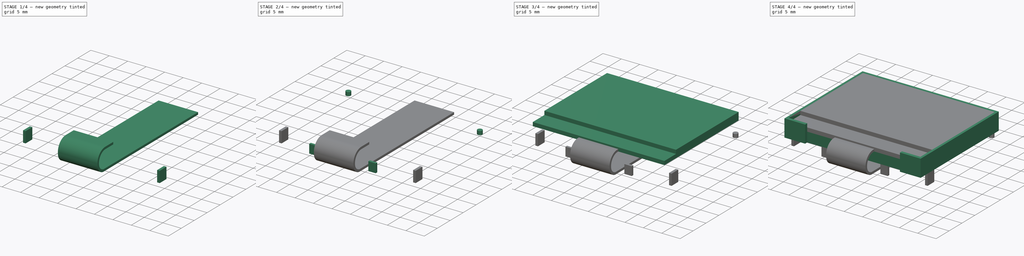
[diagram: build sequence overview — one tinted view per stage of 4, left to right]
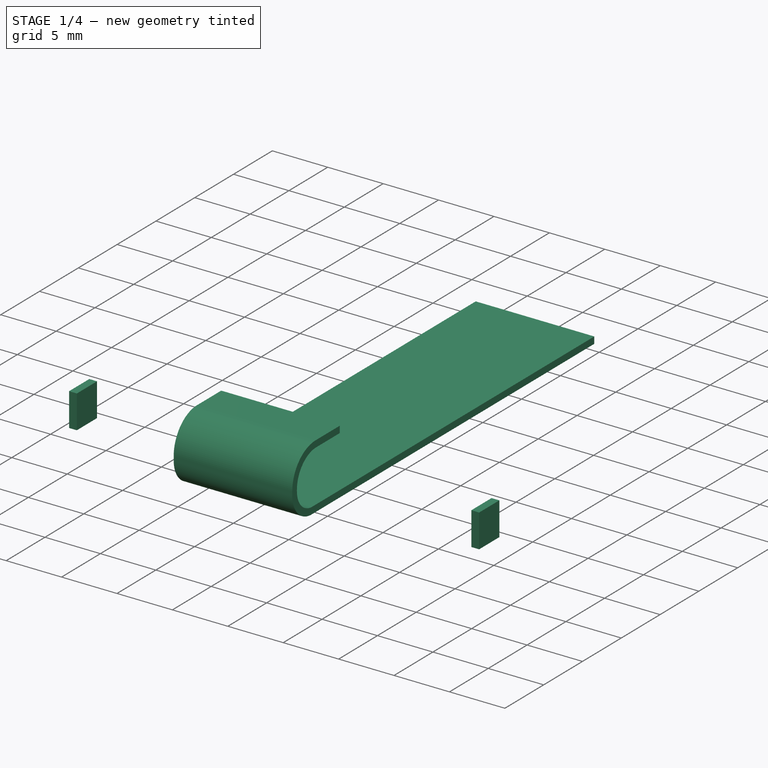
[diagram: stage 1 of 4 — iso view after this stage's code; geometry added in this stage tinted green]
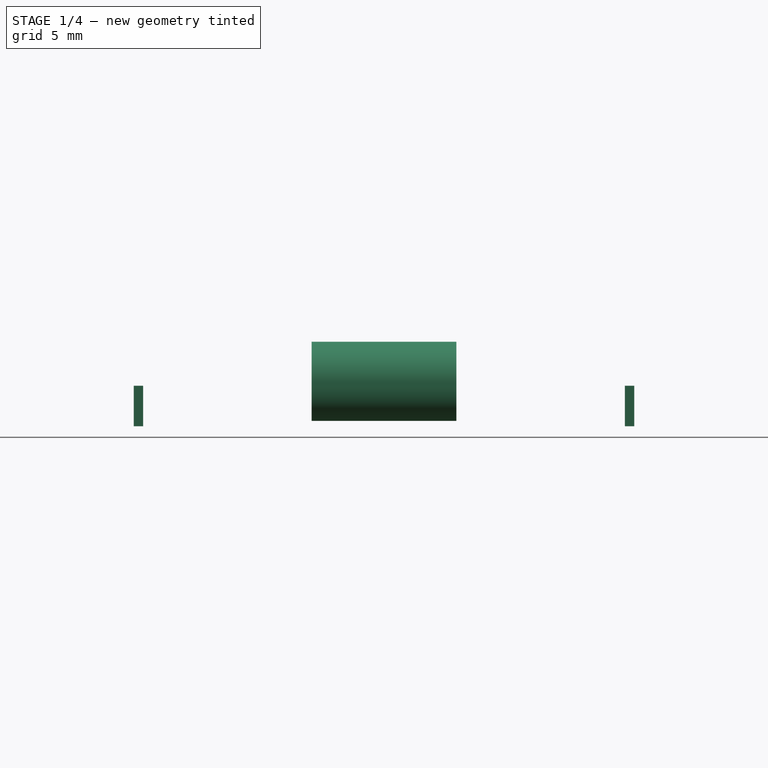
[diagram: stage 1 of 4 — front view after this stage's code; geometry added in this stage tinted green]
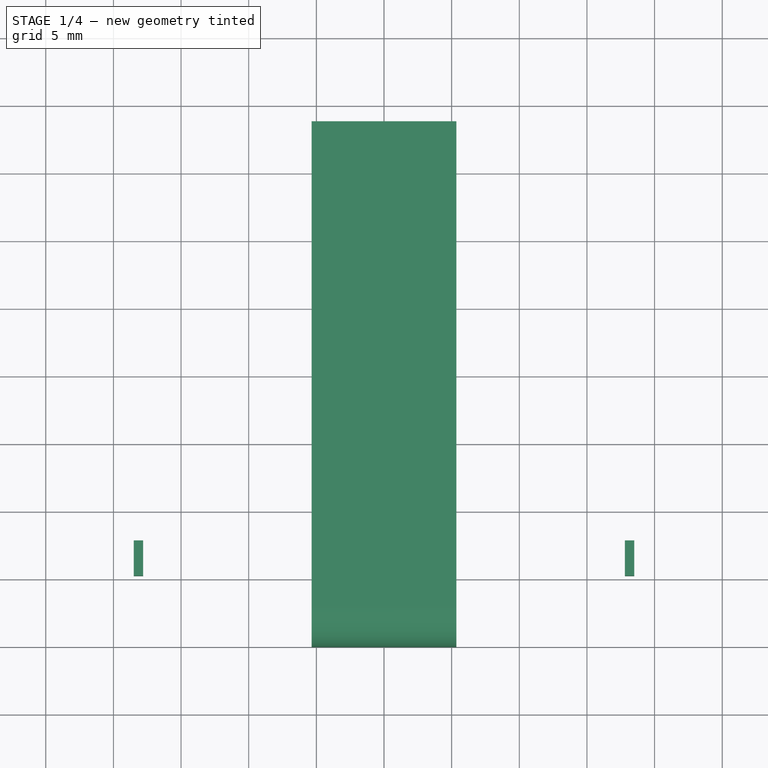
[diagram: stage 1 of 4 — top view after this stage's code; geometry added in this stage tinted green]
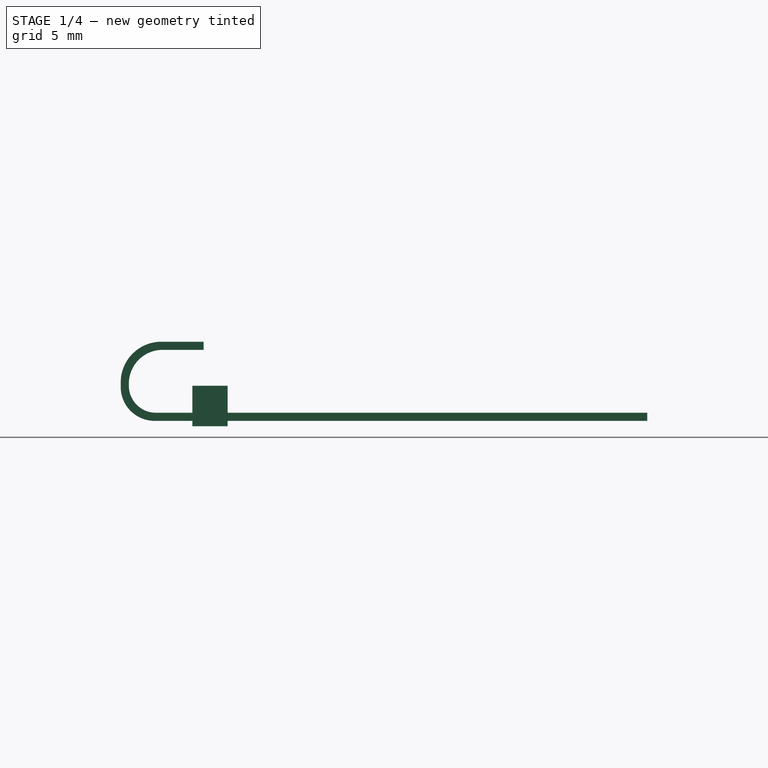
[diagram: stage 1 of 4 — right view after this stage's code; geometry added in this stage tinted green]
FCSTD DOCUMENT  (FreeCAD 0.16R6712 (Git))
Label: DEM_128064P_SBH-PW-N
License: All rights reserved
LicenseURL: http://en.wikipedia.org/wiki/All_rights_reserved
objects: Sketcher::SketchObject×9, PartDesign::Pad×9, App::MeasureDistance×6
note: 27 computed .brp shape members not serialized (recipe doc carries the construction recipe); baked Part::Feature solids carry a one-line shape summary decoded from their .brp

FEATURE [Sketcher::SketchObject] Sketch007  label="piny_montazowe002"
  Placement = pos=(0,0,0) rot=(1,0,0;3.14159rad)
  sketch-geometry (13):
    g0: LineSegment [constr] StartX=-18.5 StartY=17.45 StartZ=0 EndX=18.5 EndY=17.45 EndZ=0
    g1: LineSegment [constr] StartX=18.5 StartY=17.45 StartZ=0 EndX=18.5 EndY=-12.85 EndZ=0
    g2: LineSegment [constr] StartX=18.5 StartY=-12.85 StartZ=0 EndX=-18.5 EndY=-12.85 EndZ=0
    g3: LineSegment [constr] StartX=-18.5 StartY=-12.85 StartZ=0 EndX=-18.5 EndY=17.45 EndZ=0
    g4: LineSegment StartX=18.5 StartY=14.75 StartZ=0 EndX=17.8 EndY=14.75 EndZ=0
    g5: LineSegment StartX=17.8 StartY=14.75 StartZ=0 EndX=17.8 EndY=12.15 EndZ=0
    g6: LineSegment StartX=17.8 StartY=12.15 StartZ=0 EndX=18.5 EndY=12.15 EndZ=0
    g7: LineSegment StartX=18.5 StartY=12.15 StartZ=0 EndX=18.5 EndY=14.75 EndZ=0
    g8: LineSegment StartX=-17.8 StartY=14.75 StartZ=0 EndX=-18.5 EndY=14.75 EndZ=0
    g9: LineSegment StartX=-18.5 StartY=14.75 StartZ=0 EndX=-18.5 EndY=12.15 EndZ=0
    g10: LineSegment StartX=-18.5 StartY=12.15 StartZ=0 EndX=-17.8 EndY=12.15 EndZ=0
    g11: LineSegment StartX=-17.8 StartY=12.15 StartZ=0 EndX=-17.8 EndY=14.75 EndZ=0
    g12: LineSegment [constr] StartX=-19.7931 StartY=13.45 StartZ=0 EndX=20.9865 EndY=13.45 EndZ=0
  constraints (37):
    c: Coincident(g0,g1)
    c: Coincident(g1,g2)
    c: Coincident(g2,g3)
    c: Coincident(g3,g0)
    c: Horizontal(g0)
    c: Horizontal(g2)
    c: Vertical(g1)
    c: Vertical(g3)
    c: Symmetric(g1,g2,g-2)
    c: DistanceX(g0,g0) = 37
    c: DistanceY(g3,g3) = 30.3
    c: Coincident(g4,g5)
    c: Coincident(g5,g6)
    c: Coincident(g6,g7)
    c: Coincident(g7,g4)
    c: Horizontal(g4)
    c: Horizontal(g6)
    c: Vertical(g5)
    c: Vertical(g7)
    c: DistanceY(g5,g5) = 2.6
    c: Coincident(g8,g9)
    c: Coincident(g9,g10)
    c: Coincident(g10,g11)
    c: Coincident(g11,g8)
    c: Horizontal(g8)
    c: Horizontal(g10)
    c: Vertical(g9)
    c: Vertical(g11)
    c: Equal(g11,g5)
    c: Equal(g6,g10)
    c: Symmetric(g8,g4,g-2)
    c: PointOnObject(g6,g1)
    c: DistanceX(g6,g6) = 0.7
    c: DistanceY(g2,g-1) = 12.85
    c: Horizontal(g12)
    c: Symmetric(g6,g4,g12)
    c: DistanceY(g12,g0) = 4
FEATURE [PartDesign::Pad] Pad007  label="piny_montazowe003"
  Length = 3
  Length2 = 100
  Placement = pos=(0,0,0) rot=(1,0,0;3.14159rad)
  Sketch = -> Sketch007
  Type = 0
FEATURE [Sketcher::SketchObject] Sketch008  label="pasek"
  Placement = pos=(0,0,0) rot=(0.57735,0.57735,0.57735;2.0944rad)
  sketch-geometry (14):
    g0: LineSegment StartX=-13.9267 StartY=2.65 StartZ=0 EndX=-16.95 EndY=2.65 EndZ=0
    g1: LineSegment StartX=-19.45 StartY=0.15 StartZ=0 EndX=-19.45 EndY=0 EndZ=0
    g2: LineSegment StartX=-20.05 StartY=-0.1 StartZ=0 EndX=-20.05 EndY=0.25 EndZ=0
    g3: LineSegment StartX=-17.05 StartY=3.25 StartZ=0 EndX=-13.9267 EndY=3.25 EndZ=0
    g4: LineSegment StartX=-13.9267 StartY=3.25 StartZ=0 EndX=-13.9267 EndY=2.65 EndZ=0
    g5: GeomPoint [constr] X=-19.45 Y=0 Z=0
    g6: GeomPoint [constr] X=-20.05 Y=0 Z=0
    g7: ArcOfCircle CenterX=-16.95 CenterY=0.15 CenterZ=0 NormalX=0 NormalY=0 NormalZ=1 Radius=2.5 StartAngle=1.5708 EndAngle=3.14159
    g8: ArcOfCircle CenterX=-17.05 CenterY=0.25 CenterZ=0 NormalX=0 NormalY=0 NormalZ=1 Radius=3 StartAngle=1.5708 EndAngle=3.14159
    g9: ArcOfCircle CenterX=-17.45 CenterY=0 CenterZ=0 NormalX=0 NormalY=0 NormalZ=1 Radius=2 StartAngle=3.14159 EndAngle=4.71239
    g10: ArcOfCircle CenterX=-17.55 CenterY=-0.1 CenterZ=0 NormalX=0 NormalY=0 NormalZ=1 Radius=2.5 StartAngle=3.14159 EndAngle=4.71239
    g11: LineSegment StartX=18.87 StartY=-2 StartZ=0 EndX=18.87 EndY=-2.6 EndZ=0
    g12: LineSegment StartX=18.87 StartY=-2.6 StartZ=0 EndX=-17.55 EndY=-2.6 EndZ=0
    g13: LineSegment StartX=-17.45 StartY=-2 StartZ=0 EndX=18.87 EndY=-2 EndZ=0
  constraints (36):
    c: Horizontal(g0)
    c: Vertical(g1)
    c: Vertical(g2)
    c: Horizontal(g3)
    c: Coincident(g3,g4)
    c: Coincident(g4,g0)
    c: Vertical(g4)
    c: DistanceY(g4,g4) = 0.6
    c: DistanceY(g-1,g0) = 2.65
    c: PointOnObject(g5,g1)
    c: PointOnObject(g5,g-1)
    c: DistanceX(g5,g-1) = 19.45
    c: PointOnObject(g6,g2)
    c: PointOnObject(g6,g-1)
    c: DistanceX(g6,g5) = 0.6
    c: Tangent(g1,g7) = -1.5708
    c: Tangent(g0,g7) = -1.5708
    c: Tangent(g2,g8) = 1.5708
    c: Tangent(g3,g8) = 1.5708
    c: Tangent(g1,g9) = -1.5708
    c: Tangent(g2,g10) = 1.5708
    c: Radius(g7) = 2.5
    c: Radius(g8) = 3
    c: Vertical(g11)
    c: Coincident(g11,g12)
    c: Equal(g11,g4)
    c: DistanceY(g9,g5) = 2
    c: Radius(g9) = 2
    c: Tangent(g9,g13) = -1.5708
    c: Horizontal(g13)
    c: Coincident(g11,g13)
    c: Radius(g10) = 2.5
    c: DistanceY(g10,g9) = 0.6
    c: Coincident(g12,g10)
    c: DistanceX(g12,g12) = 36.42
    c: DistanceX(g10,g9) = 0.1
FEATURE [PartDesign::Pad] Pad008  label="pasek001"
  Length = 10.7
  Length2 = 100
  Midplane = true
  Placement = pos=(0,0,0) rot=(0.57735,0.57735,0.57735;2.0944rad)
  Sketch = -> Sketch008
  Type = 0
FEATURE [App::MeasureDistance] Distance001  label="Distance: 1,87718 mm"
  Distance = 1.87718
  P1 = (5.35,-17.7811,2.84017)
  P2 = (5.35,-19.3144,1.75715)
FEATURE [App::MeasureDistance] Distance002  label="Distance: 1,69827 mm"
  Distance = 1.69827
  P1 = (5.35,-19.3265,1.75715)
  P2 = (5.35,-19.8011,0.126541)
FEATURE [App::MeasureDistance] Distance003  label="Distance: 1,86305 mm"
  Distance = 1.86305
  P1 = (5.35,-19.8011,0.163048)
  P2 = (5.35,-19.1683,-1.58925)
FEATURE [App::MeasureDistance] Distance004  label="Distance: 1,83603 mm"
  Distance = 1.83603
  P1 = (5.35,-19.1805,-1.58925)
  P2 = (5.35,-17.5012,-2.33154)
FEATURE [App::MeasureDistance] Distance  label="Distance: 0,309124 mm"
  Distance = 0.309124
  P1 = (5.35,-17.4786,2.89009)
  P2 = (5.35,-17.78,2.82182)
FEATURE [App::MeasureDistance] Distance005  label="Distance: 36,3422 mm"
  Distance = 36.3422
  P1 = (5.35,-17.4722,-2.36018)
  P2 = (5.35,18.87,-2.39459)
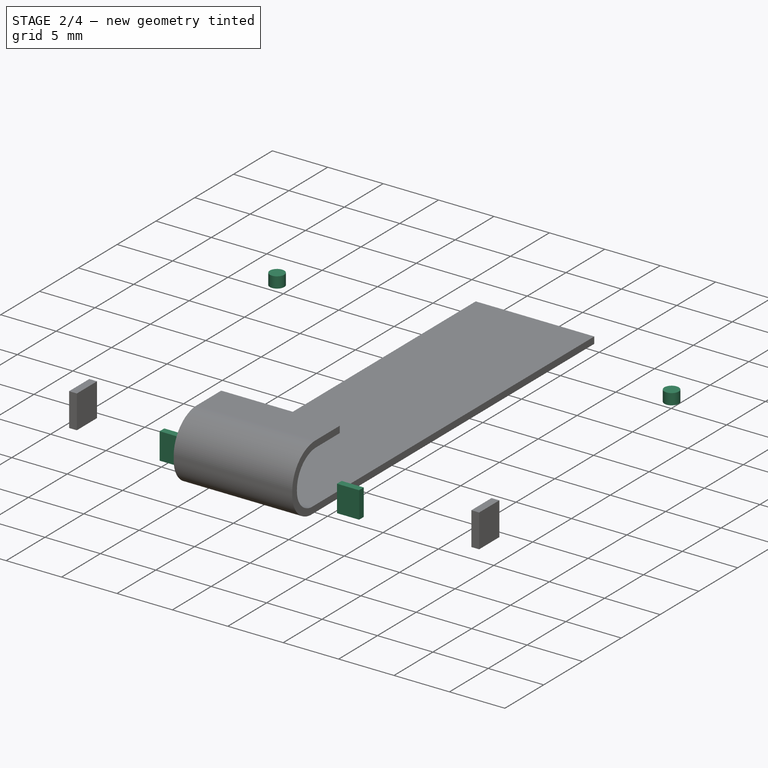
[diagram: stage 2 of 4 — iso view after this stage's code; geometry added in this stage tinted green]
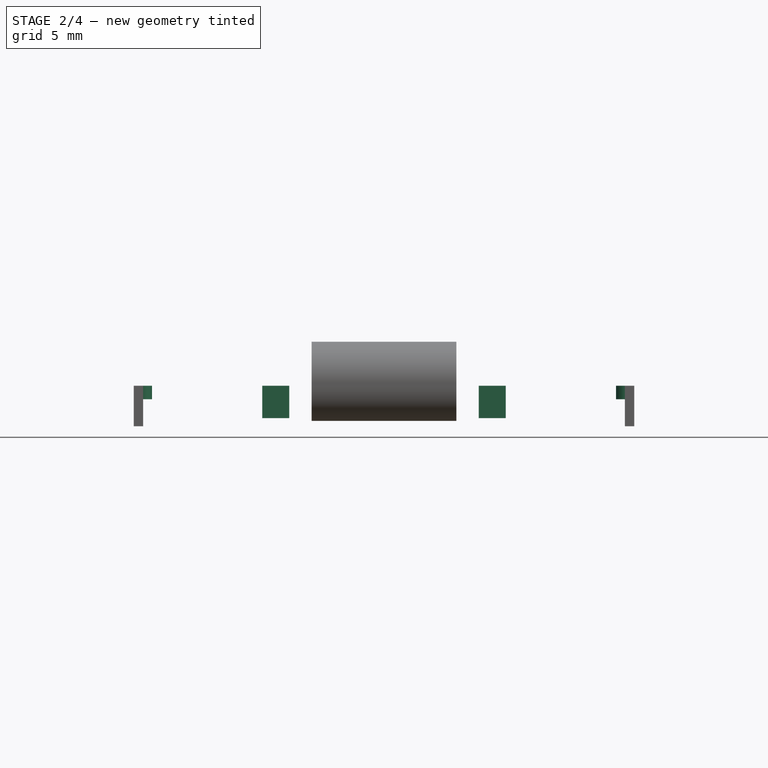
[diagram: stage 2 of 4 — front view after this stage's code; geometry added in this stage tinted green]
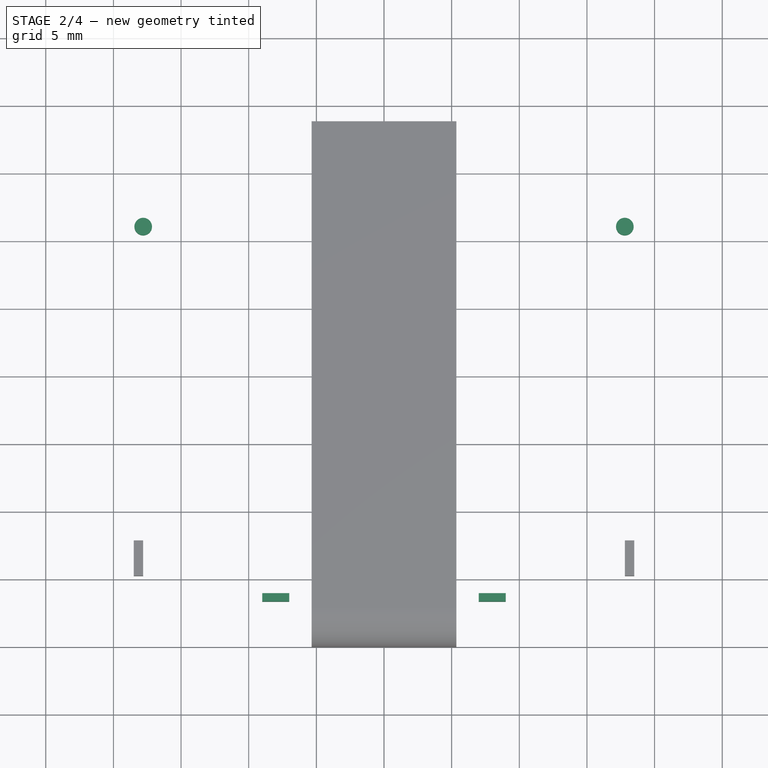
[diagram: stage 2 of 4 — top view after this stage's code; geometry added in this stage tinted green]
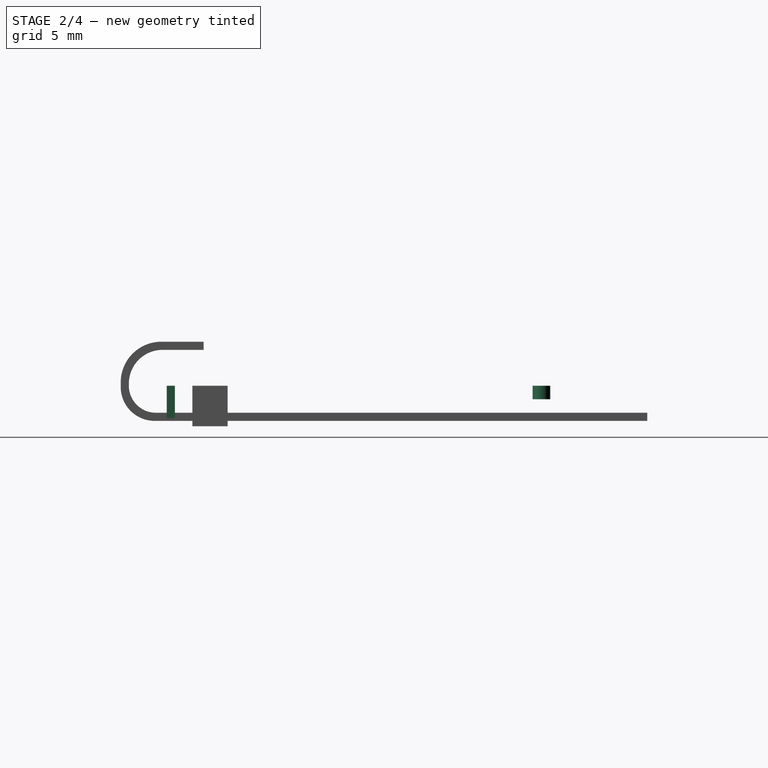
[diagram: stage 2 of 4 — right view after this stage's code; geometry added in this stage tinted green]
FEATURE [Sketcher::SketchObject] Sketch005  label="piny_montazowe"
  Placement = pos=(0,0,0) rot=(1,0,0;3.14159rad)
  sketch-geometry (6):
    g0: Circle CenterX=-17.8 CenterY=-11.05 CenterZ=0 NormalX=0 NormalY=0 NormalZ=1 Radius=0.65
    g1: Circle CenterX=17.8 CenterY=-11.05 CenterZ=0 NormalX=0 NormalY=0 NormalZ=1 Radius=0.65
    g2: LineSegment [constr] StartX=-18.5 StartY=17.45 StartZ=0 EndX=18.5 EndY=17.45 EndZ=0
    g3: LineSegment [constr] StartX=18.5 StartY=17.45 StartZ=0 EndX=18.5 EndY=-12.85 EndZ=0
    g4: LineSegment [constr] StartX=18.5 StartY=-12.85 StartZ=0 EndX=-18.5 EndY=-12.85 EndZ=0
    g5: LineSegment [constr] StartX=-18.5 StartY=-12.85 StartZ=0 EndX=-18.5 EndY=17.45 EndZ=0
  constraints (17):
    c: Equal(g1,g0)
    c: Radius(g0) = 0.65
    c: Symmetric(g1,g0,g-2)
    c: DistanceX(g0,g1) = 35.6
    c: Coincident(g2,g3)
    c: Coincident(g3,g4)
    c: Coincident(g4,g5)
    c: Coincident(g5,g2)
    c: Horizontal(g2)
    c: Horizontal(g4)
    c: Vertical(g3)
    c: Vertical(g5)
    c: Symmetric(g3,g4,g-2)
    c: DistanceX(g2,g2) = 37
    c: DistanceY(g5,g5) = 30.3
    c: DistanceY(g0,g2) = 28.5
    c: DistanceY(g3,g-1) = 12.85
FEATURE [PartDesign::Pad] Pad005  label="piny_montazowe001"
  Length = 1
  Length2 = 100
  Placement = pos=(0,0,0) rot=(1,0,0;3.14159rad)
  Sketch = -> Sketch005
  Type = 0
FEATURE [Sketcher::SketchObject] Sketch006  label="katoda_anoda"
  Placement = pos=(0,0,0) rot=(1,0,0;3.14159rad)
  sketch-geometry (13):
    g0: LineSegment StartX=-9 StartY=16.65 StartZ=0 EndX=-7 EndY=16.65 EndZ=0
    g1: LineSegment StartX=-7 StartY=16.65 StartZ=0 EndX=-7 EndY=16.05 EndZ=0
    g2: LineSegment StartX=-7 StartY=16.05 StartZ=0 EndX=-9 EndY=16.05 EndZ=0
    g3: LineSegment StartX=-9 StartY=16.05 StartZ=0 EndX=-9 EndY=16.65 EndZ=0
    g4: LineSegment StartX=7 StartY=16.65 StartZ=0 EndX=9 EndY=16.65 EndZ=0
    g5: LineSegment StartX=9 StartY=16.65 StartZ=0 EndX=9 EndY=16.05 EndZ=0
    g6: LineSegment StartX=9 StartY=16.05 StartZ=0 EndX=7 EndY=16.05 EndZ=0
    g7: LineSegment StartX=7 StartY=16.05 StartZ=0 EndX=7 EndY=16.65 EndZ=0
    g8: LineSegment [constr] StartX=-18.5 StartY=17.45 StartZ=0 EndX=18.5 EndY=17.45 EndZ=0
    g9: LineSegment [constr] StartX=18.5 StartY=17.45 StartZ=0 EndX=18.5 EndY=-12.85 EndZ=0
    g10: LineSegment [constr] StartX=18.5 StartY=-12.85 StartZ=0 EndX=-18.5 EndY=-12.85 EndZ=0
    g11: LineSegment [constr] StartX=-18.5 StartY=-12.85 StartZ=0 EndX=-18.5 EndY=17.45 EndZ=0
    g12: LineSegment [constr] StartX=-9.90383 StartY=16.35 StartZ=0 EndX=10.7665 EndY=16.35 EndZ=0
  constraints (37):
    c: Coincident(g0,g1)
    c: Coincident(g1,g2)
    c: Coincident(g2,g3)
    c: Coincident(g3,g0)
    c: Horizontal(g0)
    c: Horizontal(g2)
    c: Vertical(g1)
    c: Vertical(g3)
    c: Coincident(g4,g5)
    c: Coincident(g5,g6)
    c: Coincident(g6,g7)
    c: Coincident(g7,g4)
    c: Horizontal(g4)
    c: Horizontal(g6)
    c: Vertical(g5)
    c: Vertical(g7)
    c: DistanceX(g2,g2) = 2
    c: DistanceY(g1,g1) = 0.6
    c: Equal(g7,g1)
    c: Equal(g6,g2)
    c: Symmetric(g6,g1,g-2)
    c: DistanceX(g0,g4) = 14
    c: Coincident(g8,g9)
    c: Coincident(g9,g10)
    c: Coincident(g10,g11)
    c: Coincident(g11,g8)
    c: Horizontal(g8)
    c: Horizontal(g10)
    c: Vertical(g9)
    c: Vertical(g11)
    c: Symmetric(g10,g9,g-2)
    c: DistanceX(g10,g10) = 37
    c: DistanceY(g11,g11) = 30.3
    c: DistanceY(g10,g-1) = 12.85
    c: Horizontal(g12)
    c: Symmetric(g5,g4,g12)
    c: DistanceY(g12,g8) = 1.1
FEATURE [PartDesign::Pad] Pad006  label="katoda_anoda001"
  Length = 2.4
  Length2 = 100
  Placement = pos=(0,0,0) rot=(1,0,0;3.14159rad)
  Sketch = -> Sketch006
  Type = 0
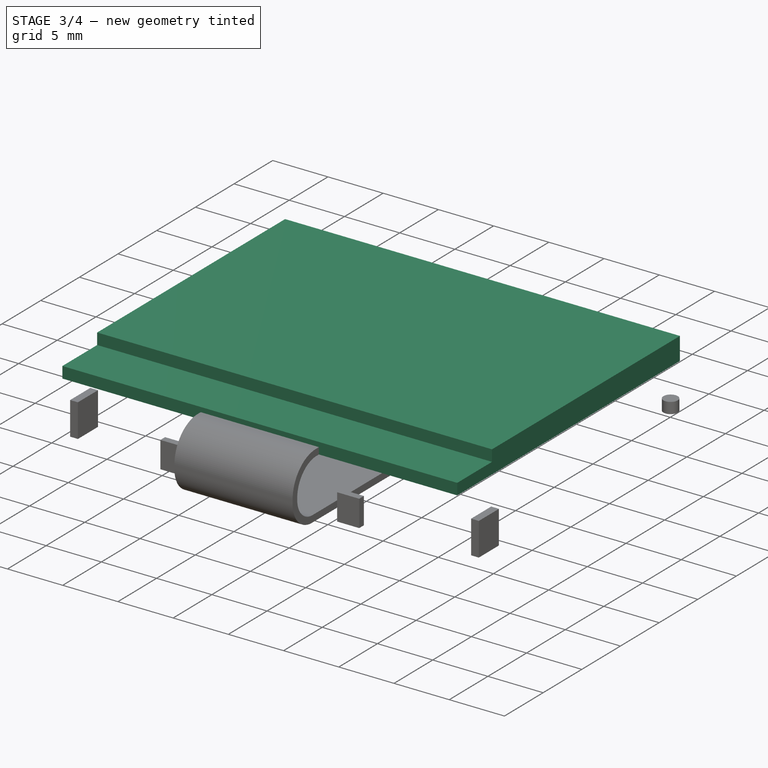
[diagram: stage 3 of 4 — iso view after this stage's code; geometry added in this stage tinted green]
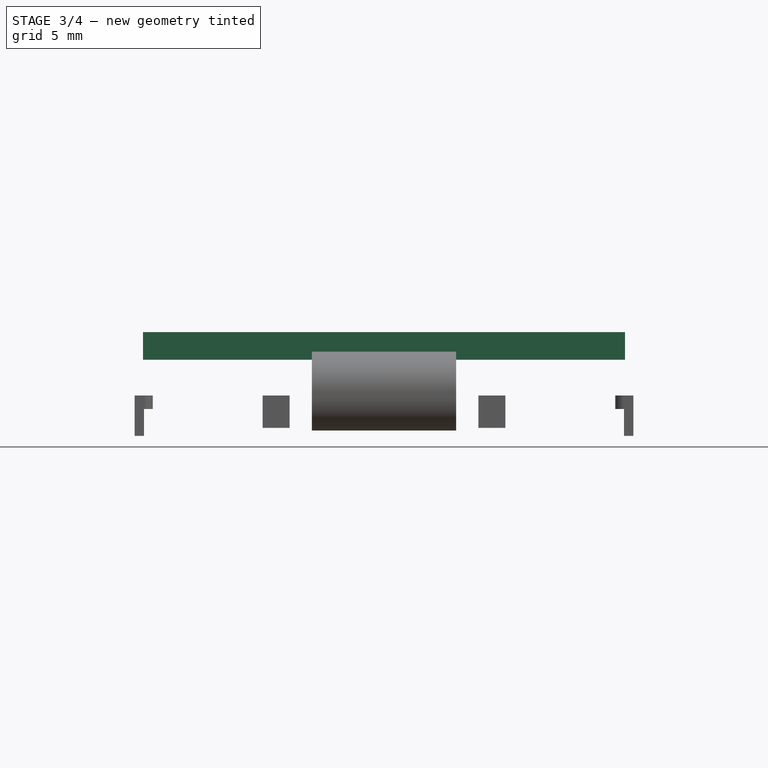
[diagram: stage 3 of 4 — front view after this stage's code; geometry added in this stage tinted green]
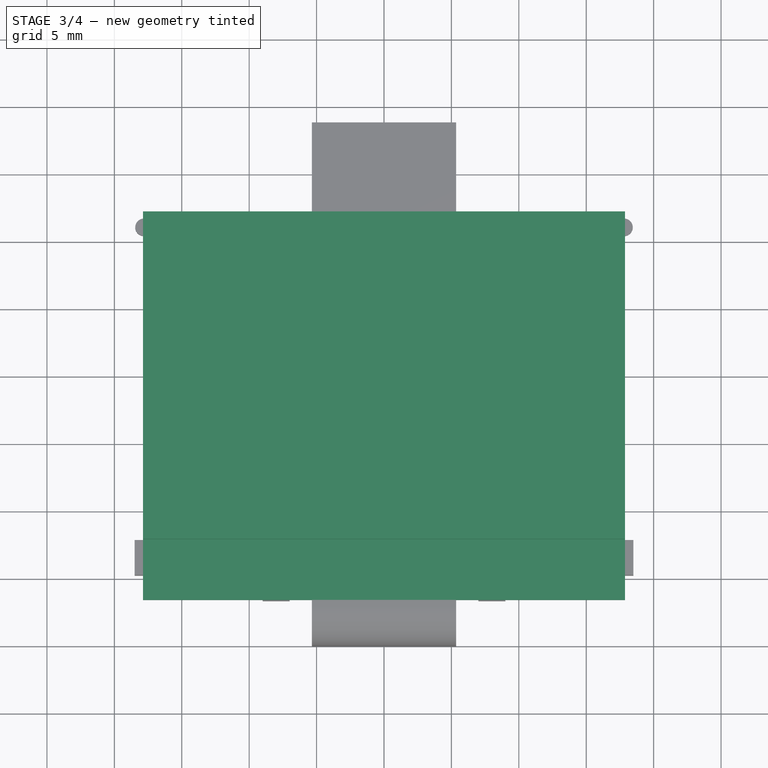
[diagram: stage 3 of 4 — top view after this stage's code; geometry added in this stage tinted green]
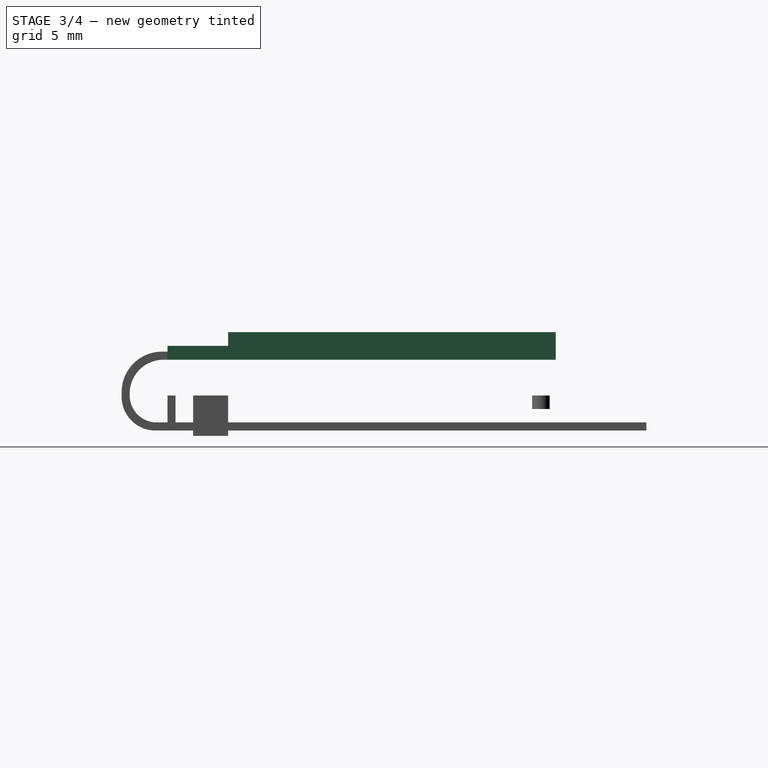
[diagram: stage 3 of 4 — right view after this stage's code; geometry added in this stage tinted green]
FEATURE [Sketcher::SketchObject] Sketch002  label="ekran"
  Placement = pos=(0,0,2.65) rot=(0,0,1;0rad)
  sketch-geometry (4):
    g0: LineSegment StartX=-13.75 StartY=7.99 StartZ=0 EndX=13.75 EndY=7.99 EndZ=0
    g1: LineSegment StartX=13.75 StartY=7.99 StartZ=0 EndX=13.75 EndY=-7.99 EndZ=0
    g2: LineSegment StartX=13.75 StartY=-7.99 StartZ=0 EndX=-13.75 EndY=-7.99 EndZ=0
    g3: LineSegment StartX=-13.75 StartY=-7.99 StartZ=0 EndX=-13.75 EndY=7.99 EndZ=0
  constraints (12):
    c: Coincident(g0,g1)
    c: Coincident(g1,g2)
    c: Coincident(g2,g3)
    c: Coincident(g3,g0)
    c: Horizontal(g0)
    c: Horizontal(g2)
    c: Vertical(g1)
    c: Vertical(g3)
    c: Symmetric(g1,g0,g-1)
    c: Symmetric(g2,g1,g-2)
    c: DistanceY(g3,g3) = 15.98
    c: DistanceX(g2,g2) = 27.5
FEATURE [PartDesign::Pad] Pad002  label="ekran001"
  Length = 0.7
  Length2 = 100
  Placement = pos=(0,0,2.65) rot=(0,0,1;0rad)
  Sketch = -> Sketch002
  Type = 0
FEATURE [Sketcher::SketchObject] Sketch003  label="zabezpieczenie_ekranu"
  Placement = pos=(0,0,2.65) rot=(0,0,1;0rad)
  sketch-geometry (4):
    g0: LineSegment StartX=-17.875 StartY=12.15 StartZ=0 EndX=17.875 EndY=12.15 EndZ=0
    g1: LineSegment StartX=17.875 StartY=12.15 StartZ=0 EndX=17.875 EndY=-12.15 EndZ=0
    g2: LineSegment StartX=17.875 StartY=-12.15 StartZ=0 EndX=-17.875 EndY=-12.15 EndZ=0
    g3: LineSegment StartX=-17.875 StartY=-12.15 StartZ=0 EndX=-17.875 EndY=12.15 EndZ=0
  constraints (12):
    c: Coincident(g0,g1)
    c: Coincident(g1,g2)
    c: Coincident(g2,g3)
    c: Coincident(g3,g0)
    c: Horizontal(g0)
    c: Horizontal(g2)
    c: Vertical(g1)
    c: Vertical(g3)
    c: Symmetric(g0,g0,g-2)
    c: DistanceX(g0,g0) = 35.75
    c: Symmetric(g1,g0,g-1)
    c: DistanceY(g3,g3) = 24.3
FEATURE [PartDesign::Pad] Pad003  label="zabezpieczenie_ekranu001"
  Length = 2.05
  Length2 = 100
  Placement = pos=(0,0,2.65) rot=(0,0,1;0rad)
  Sketch = -> Sketch003
  Type = 0
FEATURE [Sketcher::SketchObject] Sketch004  label="czarna_masa"
  Placement = pos=(0,0,2.65) rot=(0,0,1;0rad)
  sketch-geometry (4):
    g0: LineSegment StartX=-17.875 StartY=-12.15 StartZ=0 EndX=17.875 EndY=-12.15 EndZ=0
    g1: LineSegment StartX=17.875 StartY=-12.15 StartZ=0 EndX=17.875 EndY=-16.65 EndZ=0
    g2: LineSegment StartX=17.875 StartY=-16.65 StartZ=0 EndX=-17.875 EndY=-16.65 EndZ=0
    g3: LineSegment StartX=-17.875 StartY=-16.65 StartZ=0 EndX=-17.875 EndY=-12.15 EndZ=0
  constraints (12):
    c: Coincident(g0,g1)
    c: Coincident(g1,g2)
    c: Coincident(g2,g3)
    c: Coincident(g3,g0)
    c: Horizontal(g0)
    c: Horizontal(g2)
    c: Vertical(g1)
    c: Vertical(g3)
    c: Symmetric(g2,g1,g-2)
    c: DistanceX(g2,g2) = 35.75
    c: DistanceY(g0,g-1) = 12.15
    c: DistanceY(g3,g3) = 4.5
FEATURE [PartDesign::Pad] Pad004  label="czarna_masa001"
  Length = 1.025
  Length2 = 100
  Placement = pos=(0,0,2.65) rot=(0,0,1;0rad)
  Sketch = -> Sketch004
  Type = 0
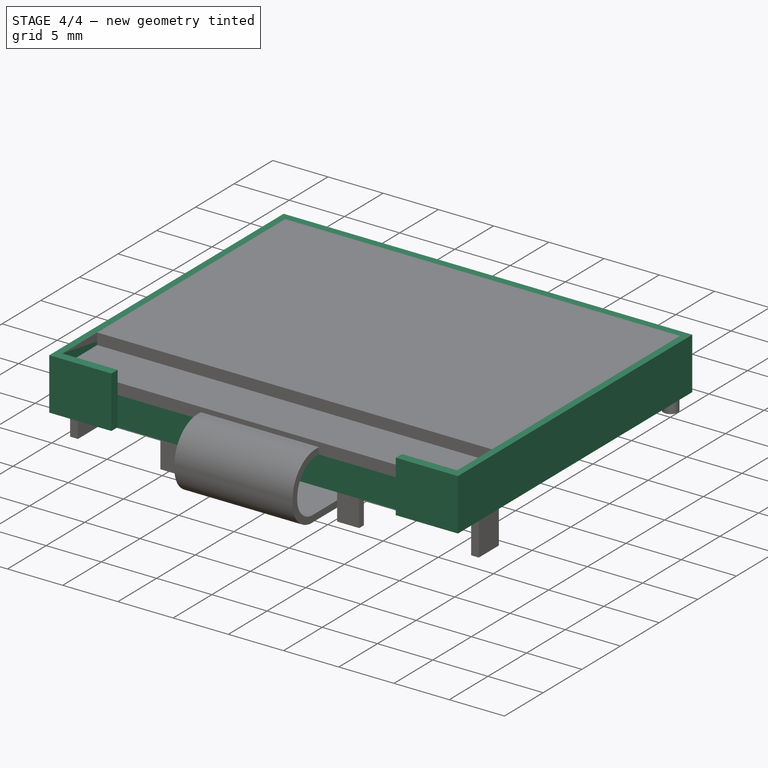
[diagram: stage 4 of 4 — iso view after this stage's code; geometry added in this stage tinted green]
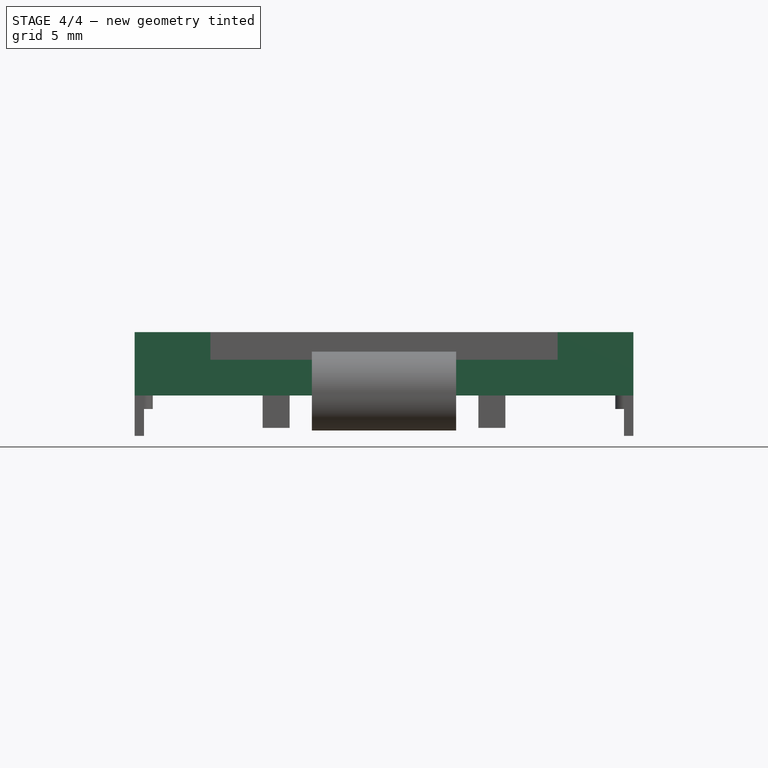
[diagram: stage 4 of 4 — front view after this stage's code; geometry added in this stage tinted green]
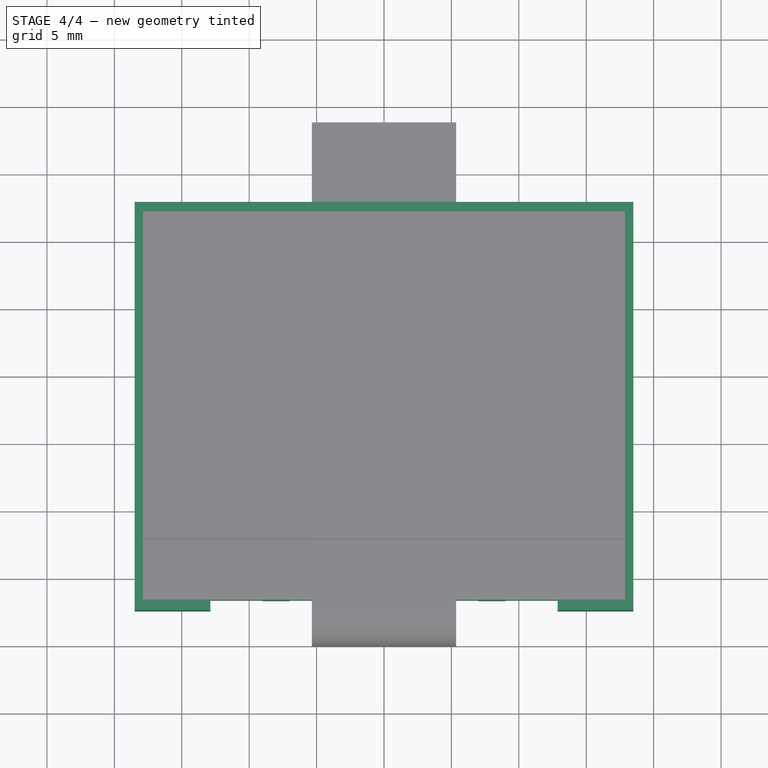
[diagram: stage 4 of 4 — top view after this stage's code; geometry added in this stage tinted green]
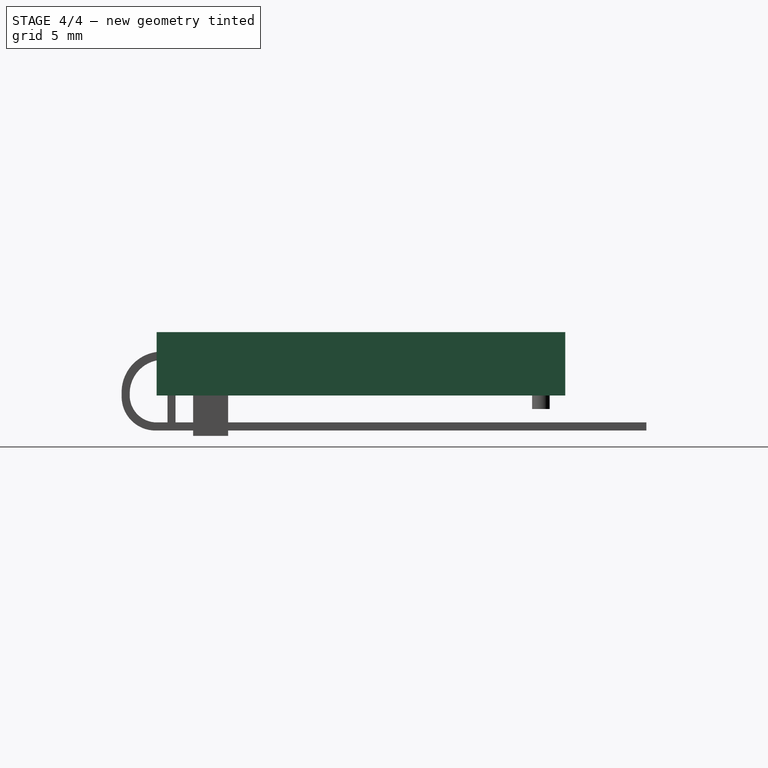
[diagram: stage 4 of 4 — right view after this stage's code; geometry added in this stage tinted green]
FEATURE [Sketcher::SketchObject] Sketch  label="PCB001"
  sketch-geometry (12):
    g0: LineSegment [constr] StartX=-13.75 StartY=7.99 StartZ=0 EndX=13.75 EndY=7.99 EndZ=0
    g1: LineSegment [constr] StartX=13.75 StartY=7.99 StartZ=0 EndX=13.75 EndY=-7.99 EndZ=0
    g2: LineSegment [constr] StartX=13.75 StartY=-7.99 StartZ=0 EndX=-13.75 EndY=-7.99 EndZ=0
    g3: LineSegment [constr] StartX=-13.75 StartY=-7.99 StartZ=0 EndX=-13.75 EndY=7.99 EndZ=0
    g4: LineSegment StartX=-17.875 StartY=12.15 StartZ=0 EndX=17.875 EndY=12.15 EndZ=0
    g5: LineSegment StartX=17.875 StartY=12.15 StartZ=0 EndX=17.875 EndY=-16.65 EndZ=0
    g6: LineSegment StartX=17.875 StartY=-16.65 StartZ=0 EndX=-17.875 EndY=-16.65 EndZ=0
    g7: LineSegment StartX=-17.875 StartY=-16.65 StartZ=0 EndX=-17.875 EndY=12.15 EndZ=0
    g8: LineSegment [constr] StartX=-18.5 StartY=12.85 StartZ=0 EndX=18.5 EndY=12.85 EndZ=0
    g9: LineSegment [constr] StartX=18.5 StartY=12.85 StartZ=0 EndX=18.5 EndY=-17.45 EndZ=0
    g10: LineSegment [constr] StartX=18.5 StartY=-17.45 StartZ=0 EndX=-18.5 EndY=-17.45 EndZ=0
    g11: LineSegment [constr] StartX=-18.5 StartY=-17.45 StartZ=0 EndX=-18.5 EndY=12.85 EndZ=0
  constraints (36):
    c: Coincident(g0,g1)
    c: Coincident(g1,g2)
    c: Coincident(g2,g3)
    c: Coincident(g3,g0)
    c: Horizontal(g0)
    c: Horizontal(g2)
    c: Vertical(g1)
    c: Vertical(g3)
    c: Symmetric(g1,g0,g-1)
    c: Symmetric(g0,g0,g-2)
    c: DistanceX(g0,g0) = 27.5
    c: Coincident(g4,g5)
    c: Coincident(g5,g6)
    c: Coincident(g6,g7)
    c: Coincident(g7,g4)
    c: Horizontal(g4)
    c: Horizontal(g6)
    c: Vertical(g5)
    c: Vertical(g7)
    c: Symmetric(g5,g6,g-2)
    c: DistanceY(g1,g1) = 15.98
    c: DistanceY(g7,g7) = 28.8
    c: DistanceX(g6,g6) = 35.75
    c: Coincident(g8,g9)
    c: Coincident(g9,g10)
    c: Coincident(g10,g11)
    c: Coincident(g11,g8)
    c: Horizontal(g8)
    c: Horizontal(g10)
    c: Vertical(g9)
    c: Vertical(g11)
    c: Symmetric(g8,g8,g-2)
    c: DistanceX(g8,g8) = 37
    c: DistanceY(g9,g9) = 30.3
    c: DistanceY(g-1,g8) = 12.85
    c: DistanceY(g10,g6) = 0.8
FEATURE [PartDesign::Pad] Pad  label="PCB"
  Length = 2.65
  Length2 = 100
  Sketch = -> Sketch
  Type = 0
FEATURE [Sketcher::SketchObject] Sketch001  label="ramka"
  sketch-geometry (16):
    g0: LineSegment [constr] StartX=-13.75 StartY=7.99 StartZ=0 EndX=13.75 EndY=7.99 EndZ=0
    g1: LineSegment [constr] StartX=13.75 StartY=7.99 StartZ=0 EndX=13.75 EndY=-7.99 EndZ=0
    g2: LineSegment [constr] StartX=13.75 StartY=-7.99 StartZ=0 EndX=-13.75 EndY=-7.99 EndZ=0
    g3: LineSegment [constr] StartX=-13.75 StartY=-7.99 StartZ=0 EndX=-13.75 EndY=7.99 EndZ=0
    g4: LineSegment StartX=-17.875 StartY=12.15 StartZ=0 EndX=17.875 EndY=12.15 EndZ=0
    g5: LineSegment StartX=17.875 StartY=12.15 StartZ=0 EndX=17.875 EndY=-16.65 EndZ=0
    g6: LineSegment StartX=17.875 StartY=-16.65 StartZ=0 EndX=12.875 EndY=-16.65 EndZ=0
    g7: LineSegment StartX=-17.875 StartY=-16.65 StartZ=0 EndX=-17.875 EndY=12.15 EndZ=0
    g8: LineSegment StartX=-18.5 StartY=12.85 StartZ=0 EndX=18.5 EndY=12.85 EndZ=0
    g9: LineSegment StartX=18.5 StartY=12.85 StartZ=0 EndX=18.5 EndY=-17.45 EndZ=0
    g10: LineSegment StartX=18.5 StartY=-17.45 StartZ=0 EndX=12.875 EndY=-17.45 EndZ=0
    g11: LineSegment StartX=-18.5 StartY=-17.45 StartZ=0 EndX=-18.5 EndY=12.85 EndZ=0
    g12: LineSegment StartX=-12.875 StartY=-16.65 StartZ=0 EndX=-12.875 EndY=-17.45 EndZ=0
    g13: LineSegment StartX=12.875 StartY=-17.45 StartZ=0 EndX=12.875 EndY=-16.65 EndZ=0
    g14: LineSegment StartX=-12.875 StartY=-17.45 StartZ=0 EndX=-18.5 EndY=-17.45 EndZ=0
    g15: LineSegment StartX=-12.875 StartY=-16.65 StartZ=0 EndX=-17.875 EndY=-16.65 EndZ=0
  constraints (47):
    c: Coincident(g0,g1)
    c: Coincident(g1,g2)
    c: Coincident(g2,g3)
    c: Coincident(g3,g0)
    c: Horizontal(g0)
    c: Horizontal(g2)
    c: Vertical(g1)
    c: Vertical(g3)
    c: Symmetric(g1,g0,g-1)
    c: Symmetric(g0,g0,g-2)
    c: DistanceX(g0,g0) = 27.5
    c: Coincident(g4,g5)
    c: Coincident(g5,g6)
    c: Coincident(g15,g7)
    c: Coincident(g7,g4)
    c: Horizontal(g4)
    c: Horizontal(g6)
    c: Vertical(g5)
    c: Vertical(g7)
    c: Symmetric(g5,g15,g-2)
    c: DistanceY(g1,g1) = 15.98
    c: DistanceY(g7,g7) = 28.8
    c: DistanceX(g15,g6) = 35.75
    c: Coincident(g8,g9)
    c: Coincident(g9,g10)
    c: Coincident(g14,g11)
    c: Coincident(g11,g8)
    c: Horizontal(g8)
    c: Horizontal(g10)
    c: Vertical(g9)
    c: Vertical(g11)
    c: Symmetric(g8,g8,g-2)
    c: DistanceX(g8,g8) = 37
    c: DistanceY(g9,g9) = 30.3
    c: Vertical(g12)
    c: Vertical(g13)
    c: Coincident(g10,g13)
    c: Coincident(g14,g12)
    c: Tangent(g10,g14)
    c: Coincident(g6,g13)
    c: Coincident(g15,g12)
    c: Tangent(g6,g15)
    c: Symmetric(g12,g10,g-2)
    c: DistanceX(g12,g6) = 25.75
    c: Equal(g12,g13)
    c: DistanceY(g12,g12) = 0.8
    c: DistanceY(g-1,g8) = 12.85
FEATURE [PartDesign::Pad] Pad001  label="ramka001"
  Length = 4.7
  Length2 = 100
  Sketch = -> Sketch001
  Type = 0
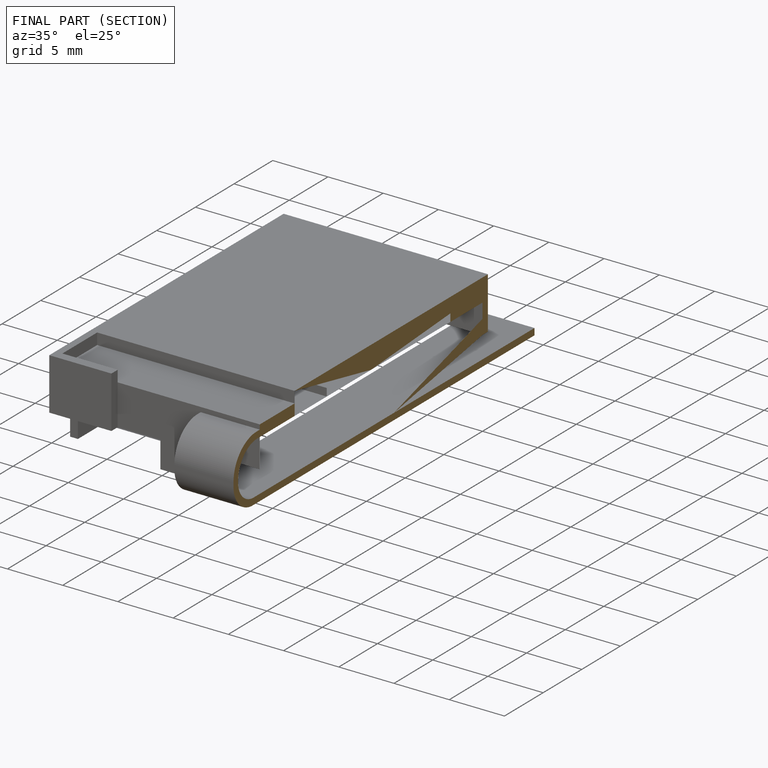
[diagram: finished part — half-section view (interior)]
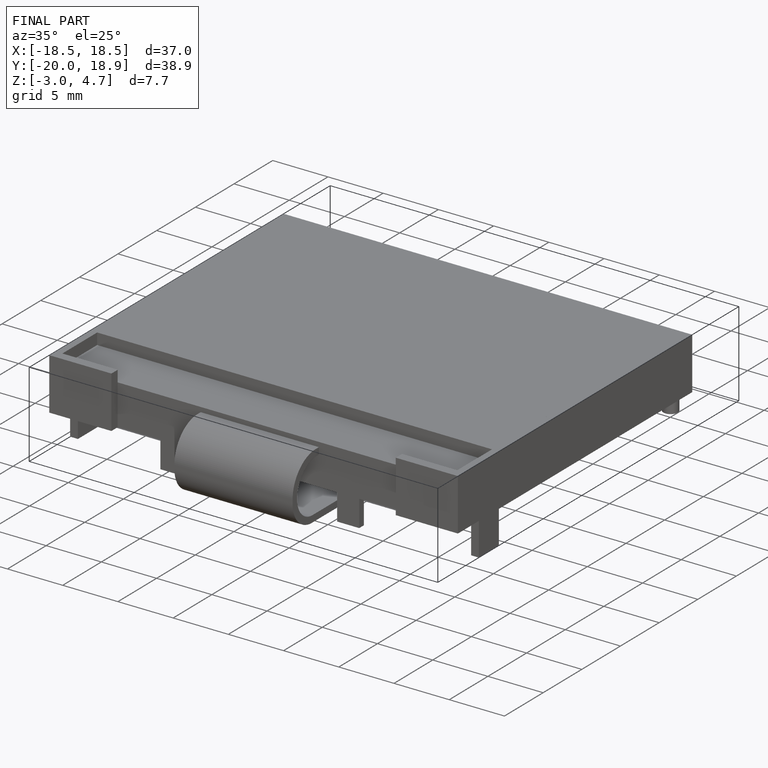
[diagram: finished part — iso view with bounding-box wireframe]
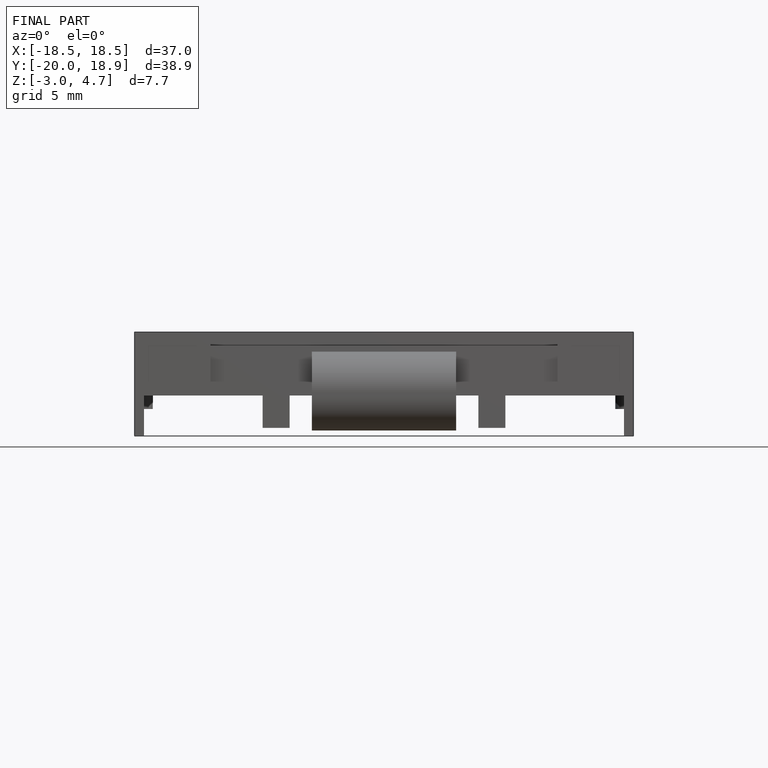
[diagram: finished part — front view with bounding-box wireframe]
